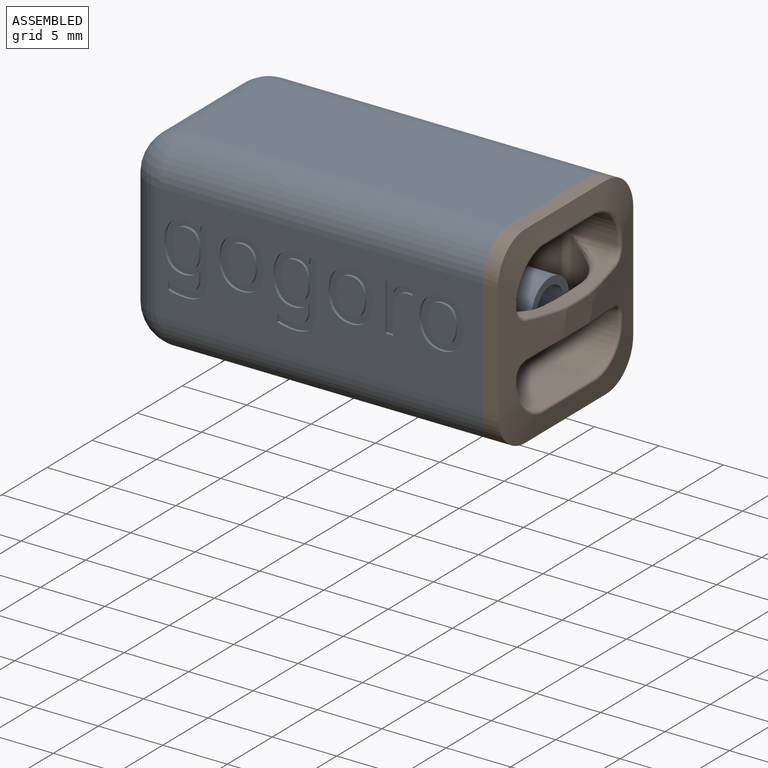
[diagram: assembled view]
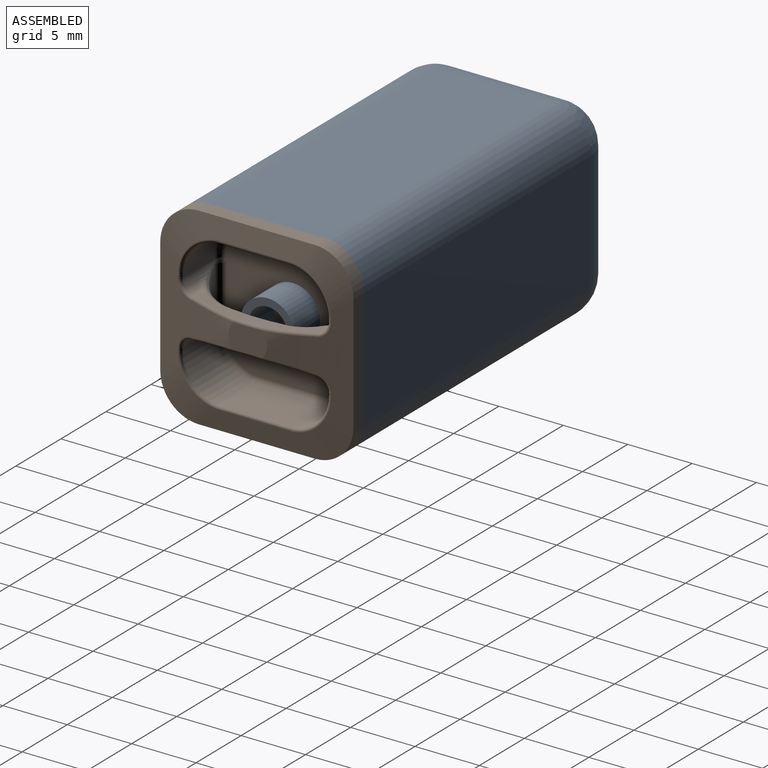
[diagram: assembled view, second angle]
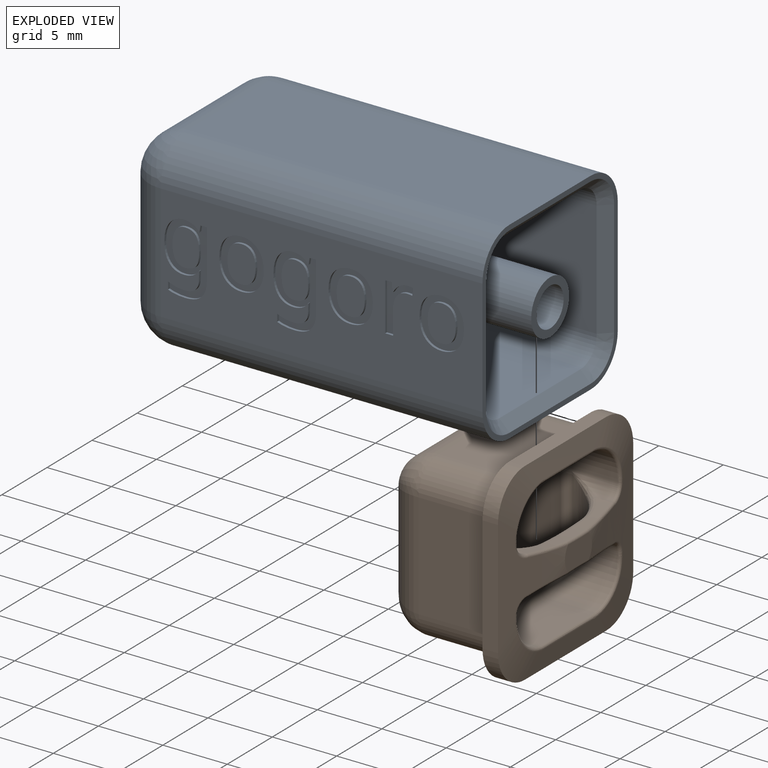
[diagram: exploded view]
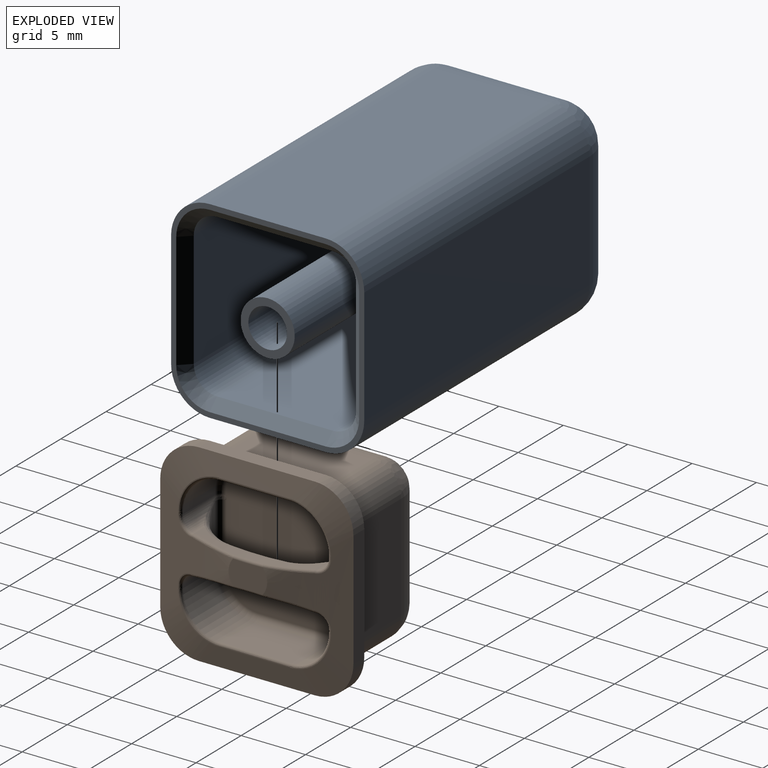
[diagram: exploded view, second angle]
ASSEMBLY  parts=2 mates=3
PART A: 170 faces, bbox 28x15x15 mm
  f0: plane 25x9mm, normal (0,-1,0), area 163.1mm2, adj f1,f11,f15,f17,f35,f36,f37,f38
  f1: plane 15x15mm, normal (1,0,0), area 21.4mm2, adj f0,f2,f3,f4,f6,f8,f11,f17
  f2: plane 25x9mm, normal (0,0,-1), area 225mm2, adj f1,f8,f14,f17
  f3: plane 25x9mm, normal (0,1,0), area 225mm2, adj f1,f6,f8,f9
  f4: plane 25x9mm, normal (0,0,1), area 225mm2, adj f1,f6,f10,f11
  f5: plane 9x9mm, normal (-1,0,0), area 81mm2, adj f9,f10,f14,f15
  f6: cylinder r=3mm len=25mm, axis (1,0,0), area 117.8mm2, adj f1,f3,f4,f7
  f7: sphere r=3mm, area 14.1mm2, adj f6,f9,f10
  f8: cylinder r=3mm len=25mm, axis (-1,0,0), area 117.8mm2, adj f1,f2,f3,f12
  f9: cylinder r=3mm len=9mm, axis (0,0,1), area 42.4mm2, adj f3,f5,f7,f12
  f10: cylinder r=3mm len=9mm, axis (0,-1,0), area 42.4mm2, adj f4,f5,f7,f13
  f11: cylinder r=3mm len=25mm, axis (-1,0,0), area 117.8mm2, adj f0,f1,f4,f13
  f12: sphere r=3mm, area 14.1mm2, adj f8,f9,f14
  f13: sphere r=3mm, area 14.1mm2, adj f10,f11,f15
  f14: cylinder r=3mm len=9mm, axis (0,1,0), area 42.4mm2, adj f2,f5,f12,f16
  f15: cylinder r=3mm len=9mm, axis (0,0,-1), area 42.4mm2, adj f0,f5,f13,f16
  f16: sphere r=3mm, area 14.1mm2, adj f14,f15,f17
  f17: cylinder r=3mm len=25mm, axis (1,0,0), area 117.8mm2, adj f0,f1,f2,f16
  f18: plane 24.2x9mm, normal (0,0,-1), area 217.8mm2, adj f19,f25,f26,f31
  f19: cylinder r=1.8mm len=24.2mm, axis (1,0,0), area 68.4mm2, adj f18,f20,f26,f29
  f20: plane 24.2x9mm, normal (0,1,0), area 217.8mm2, adj f19,f21,f26,f27
  f21: cylinder r=1.8mm len=24.2mm, axis (1,0,0), area 68.4mm2, adj f20,f22,f26,f28
  f22: plane 24.2x9mm, normal (0,0,1), area 217.8mm2, adj f21,f23,f26,f30
  f23: cylinder r=1.8mm len=24.2mm, axis (1,0,0), area 68.4mm2, adj f22,f24,f26,f32
  f24: plane 24.2x9mm, normal (0,-1,0), area 217.8mm2, adj f23,f25,f26,f34
  f25: cylinder r=1.8mm len=24.2mm, axis (1,0,0), area 68.4mm2, adj f18,f24,f26,f33
  f26: plane 12.6x12.6mm, normal (1,0,0), area 142.1mm2, adj f18,f19,f20,f21,f22,f23,f24,f25
  f27: plane 9x0.8mm, normal (0.71,0.71,0), area 10.2mm2, adj f1,f20,f28,f29
  f28: cone r=1.8mm half-angle=45deg, axis (1,0,0), area 3.9mm2, adj f1,f21,f27,f30
  f29: cone r=1.8mm half-angle=45deg, axis (1,0,0), area 3.9mm2, adj f1,f19,f27,f31
  f30: plane 9x0.8mm, normal (0.71,0,0.71), area 10.2mm2, adj f1,f22,f28,f32
  f31: plane 9x0.8mm, normal (0.71,0,-0.71), area 10.2mm2, adj f1,f18,f29,f33
  f32: cone r=1.8mm half-angle=45deg, axis (1,0,0), area 3.9mm2, adj f1,f23,f30,f34
  f33: cone r=1.8mm half-angle=45deg, axis (1,0,0), area 3.9mm2, adj f1,f25,f31,f34
  f34: plane 9x0.8mm, normal (0.71,-0.71,0), area 10.2mm2, adj f1,f24,f32,f33
  f35: extruded ~0.44x0.2mm, area 0.1mm2, adj f0,f36,f48,f49
  f36: extruded ~0.63x0.2mm, area 0.1mm2, adj f0,f35,f37,f49
  f37: extruded ~0.56x0.51mm, area 0.2mm2, adj f0,f36,f38,f49
  f38: plane 0.2x0.03mm, normal (0,0,-1), area 0mm2, adj f0,f37,f39,f49
  f39: plane 0.68x0.2mm, normal (-1,0,-0.1), area 0.1mm2, adj f0,f38,f40,f49
  f40: plane 0.5x0.2mm, normal (0,0,-1), area 0.1mm2, adj f0,f39,f41,f49
  f41: plane 3.72x0.2mm, normal (1,0,0), area 0.7mm2, adj f0,f40,f42,f49
  f42: plane 0.61x0.2mm, normal (0,0,1), area 0.1mm2, adj f0,f41,f43,f49
  f43: plane 1.99x0.2mm, normal (-1,0,0), area 0.4mm2, adj f0,f42,f44,f49
  f44: extruded ~0.64x0.2mm, area 0.1mm2, adj f0,f43,f45,f49
  f45: extruded ~0.45x0.4mm, area 0.1mm2, adj f0,f44,f46,f49
  f46: extruded ~0.55x0.2mm, area 0.1mm2, adj f0,f45,f47,f49
  f47: extruded ~0.4x0.2mm, area 0.1mm2, adj f0,f46,f48,f49
  f48: plane 0.56x0.2mm, normal (-0.99,0,0.13), area 0.1mm2, adj f0,f35,f47,f49
  f49: plane 3.79x2.17mm, normal (0,-1,0), area 3.1mm2, adj f35,f36,f37,f38,f39,f40,f41,f42
  f50: plane 0.46x0.2mm, normal (1,0,-0.04), area 0.1mm2, adj f0,f51,f78,f79
  f51: plane 0.2x0.15mm, normal (1,0,0), area 0mm2, adj f0,f50,f52,f79
  f52: extruded ~0.77x0.28mm, area 0.2mm2, adj f0,f51,f53,f79
  f53: extruded ~0.75x0.28mm, area 0.2mm2, adj f0,f52,f54,f79
  f54: extruded ~1.37x0.29mm, area 0.3mm2, adj f0,f53,f55,f79
  f55: plane 0.56x0.2mm, normal (1,0,0), area 0.1mm2, adj f0,f54,f56,f79
  f56: extruded ~1.34x0.24mm, area 0.3mm2, adj f0,f55,f57,f79
  f57: extruded ~1.26x0.4mm, area 0.3mm2, adj f0,f56,f58,f79
  f58: extruded ~1.2x0.41mm, area 0.3mm2, adj f0,f57,f59,f79
  f59: plane 3.78x0.2mm, normal (-1,0,0), area 0.8mm2, adj f0,f58,f60,f79
  f60: plane 0.49x0.2mm, normal (0,0,-1), area 0.1mm2, adj f0,f59,f61,f79
  f61: plane 0.49x0.2mm, normal (0.99,0,-0.16), area 0.1mm2, adj f0,f60,f62,f79
  f62: plane 0.2x0.04mm, normal (0,0,-1), area 0mm2, adj f0,f61,f63,f79
  f63: extruded ~1.17x0.56mm, area 0.3mm2, adj f0,f62,f64,f79
  f64: extruded ~1.12x0.52mm, area 0.3mm2, adj f0,f63,f65,f79
  f65: extruded ~1.42x0.41mm, area 0.3mm2, adj f0,f64,f66,f79
  f66: extruded ~1.42x0.41mm, area 0.3mm2, adj f0,f65,f67,f79
  f67: extruded ~1.13x0.5mm, area 0.3mm2, adj f0,f66,f68,f79
  f68: extruded ~1.15x0.56mm, area 0.3mm2, adj f0,f67,f78,f79
  f69: extruded ~0.82x0.3mm, area 0.2mm2, adj f70,f77,f79,f80
  f70: extruded ~0.74x0.36mm, area 0.2mm2, adj f69,f71,f79,f80
  f71: extruded ~1.05x0.25mm, area 0.2mm2, adj f70,f72,f79,f80
  f72: extruded ~1.06x0.26mm, area 0.2mm2, adj f71,f73,f79,f80
  f73: extruded ~0.73x0.37mm, area 0.2mm2, adj f72,f74,f79,f80
  f74: extruded ~0.83x0.34mm, area 0.2mm2, adj f73,f75,f79,f80
  f75: extruded ~1.09x0.26mm, area 0.2mm2, adj f74,f76,f79,f80
  f76: plane 0.2x0.15mm, normal (1,0,0), area 0mm2, adj f75,f77,f79,f80
  f77: extruded ~0.98x0.26mm, area 0.2mm2, adj f69,f76,f79,f80
  f78: plane 0.2x0.03mm, normal (0,0,1), area 0mm2, adj f0,f50,f68,f79
  f79: plane 5.46x3.3mm, normal (0,-1,0), area 8.2mm2, adj f50,f51,f52,f53,f54,f55,f56,f57
  f80: plane 2.85x2.07mm, normal (0,-1,0), area 5mm2, adj f69,f70,f71,f72,f73,f74,f75,f76
  f81: extruded ~1.07x0.28mm, area 0.2mm2, adj f82,f96,f97,f163
  f82: extruded ~1.41x1.08mm, area 0.4mm2, adj f81,f83,f97,f163
  f83: extruded ~0.82x0.35mm, area 0.2mm2, adj f82,f84,f97,f163
  f84: extruded ~1.06x0.28mm, area 0.2mm2, adj f83,f85,f97,f163
  f85: extruded ~1.07x0.28mm, area 0.2mm2, adj f84,f86,f97,f163
  f86: extruded ~0.81x0.36mm, area 0.2mm2, adj f85,f96,f97,f163
  f87: extruded ~1.42x0.46mm, area 0.3mm2, adj f0,f88,f95,f97
  f88: extruded ~1.41x0.46mm, area 0.3mm2, adj f0,f87,f89,f97
  f89: extruded ~1.25x0.52mm, area 0.3mm2, adj f0,f88,f90,f97
  f90: extruded ~1.28x0.51mm, area 0.3mm2, adj f0,f89,f91,f97
  f91: extruded ~1.42x0.45mm, area 0.3mm2, adj f0,f90,f92,f97
  f92: extruded ~1.02x0.21mm, area 0.2mm2, adj f0,f91,f93,f97
  f93: extruded ~0.68x0.6mm, area 0.2mm2, adj f0,f92,f94,f97
  f94: extruded ~0.9x0.24mm, area 0.2mm2, adj f0,f93,f95,f97
  f95: extruded ~1.28x0.51mm, area 0.3mm2, adj f0,f87,f94,f97
  f96: extruded ~0.82x0.36mm, area 0.2mm2, adj f81,f86,f97,f163
  f97: plane 3.86x3.44mm, normal (0,-1,0), area 5.7mm2, adj f81,f82,f83,f84,f85,f86,f87,f88
  f98: plane 0.46x0.2mm, normal (1,0,-0.04), area 0.1mm2, adj f0,f99,f126,f127
  f99: plane 0.2x0.15mm, normal (1,0,0), area 0mm2, adj f0,f98,f100,f127
  f100: extruded ~0.77x0.28mm, area 0.2mm2, adj f0,f99,f101,f127
  f101: extruded ~0.75x0.28mm, area 0.2mm2, adj f0,f100,f102,f127
  f102: extruded ~1.37x0.29mm, area 0.3mm2, adj f0,f101,f103,f127
  f103: plane 0.56x0.2mm, normal (1,0,0), area 0.1mm2, adj f0,f102,f104,f127
  f104: extruded ~1.34x0.24mm, area 0.3mm2, adj f0,f103,f105,f127
  f105: extruded ~1.26x0.4mm, area 0.3mm2, adj f0,f104,f106,f127
  f106: extruded ~1.2x0.41mm, area 0.3mm2, adj f0,f105,f107,f127
  f107: plane 3.78x0.2mm, normal (-1,0,0), area 0.8mm2, adj f0,f106,f108,f127
  f108: plane 0.49x0.2mm, normal (0,0,-1), area 0.1mm2, adj f0,f107,f109,f127
  f109: plane 0.49x0.2mm, normal (0.99,0,-0.16), area 0.1mm2, adj f0,f108,f110,f127
  f110: plane 0.2x0.04mm, normal (0,0,-1), area 0mm2, adj f0,f109,f111,f127
  f111: extruded ~1.17x0.56mm, area 0.3mm2, adj f0,f110,f112,f127
  f112: extruded ~1.12x0.52mm, area 0.3mm2, adj f0,f111,f113,f127
  f113: extruded ~1.42x0.41mm, area 0.3mm2, adj f0,f112,f114,f127
  f114: extruded ~1.42x0.41mm, area 0.3mm2, adj f0,f113,f115,f127
  f115: extruded ~1.13x0.5mm, area 0.3mm2, adj f0,f114,f116,f127
  f116: extruded ~1.15x0.56mm, area 0.3mm2, adj f0,f115,f126,f127
  f117: extruded ~0.82x0.3mm, area 0.2mm2, adj f118,f125,f127,f128
  f118: extruded ~0.74x0.36mm, area 0.2mm2, adj f117,f119,f127,f128
  f119: extruded ~1.05x0.25mm, area 0.2mm2, adj f118,f120,f127,f128
  f120: extruded ~1.06x0.26mm, area 0.2mm2, adj f119,f121,f127,f128
  f121: extruded ~0.73x0.37mm, area 0.2mm2, adj f120,f122,f127,f128
  f122: extruded ~0.83x0.34mm, area 0.2mm2, adj f121,f123,f127,f128
  f123: extruded ~1.09x0.26mm, area 0.2mm2, adj f122,f124,f127,f128
  f124: plane 0.2x0.15mm, normal (1,0,0), area 0mm2, adj f123,f125,f127,f128
  f125: extruded ~0.98x0.26mm, area 0.2mm2, adj f117,f124,f127,f128
  f126: plane 0.2x0.03mm, normal (0,0,1), area 0mm2, adj f0,f98,f116,f127
  f127: plane 5.46x3.3mm, normal (0,-1,0), area 8.2mm2, adj f98,f99,f100,f101,f102,f103,f104,f105
  f128: plane 2.85x2.07mm, normal (0,-1,0), area 5mm2, adj f117,f118,f119,f120,f121,f122,f123,f124
  f129: extruded ~1.07x0.28mm, area 0.2mm2, adj f130,f144,f145,f164
  f130: extruded ~1.41x1.08mm, area 0.4mm2, adj f129,f131,f145,f164
  f131: extruded ~0.82x0.35mm, area 0.2mm2, adj f130,f132,f145,f164
  f132: extruded ~1.06x0.28mm, area 0.2mm2, adj f131,f133,f145,f164
  f133: extruded ~1.07x0.28mm, area 0.2mm2, adj f132,f134,f145,f164
  f134: extruded ~0.81x0.36mm, area 0.2mm2, adj f133,f144,f145,f164
  f135: extruded ~1.42x0.46mm, area 0.3mm2, adj f0,f136,f143,f145
  f136: extruded ~1.41x0.46mm, area 0.3mm2, adj f0,f135,f137,f145
  f137: extruded ~1.25x0.52mm, area 0.3mm2, adj f0,f136,f138,f145
  f138: extruded ~1.28x0.51mm, area 0.3mm2, adj f0,f137,f139,f145
  f139: extruded ~1.42x0.45mm, area 0.3mm2, adj f0,f138,f140,f145
  f140: extruded ~1.02x0.21mm, area 0.2mm2, adj f0,f139,f141,f145
  f141: extruded ~0.68x0.6mm, area 0.2mm2, adj f0,f140,f142,f145
  f142: extruded ~0.9x0.24mm, area 0.2mm2, adj f0,f141,f143,f145
  f143: extruded ~1.28x0.51mm, area 0.3mm2, adj f0,f135,f142,f145
  f144: extruded ~0.82x0.36mm, area 0.2mm2, adj f129,f134,f145,f164
  f145: plane 3.86x3.44mm, normal (0,-1,0), area 5.7mm2, adj f129,f130,f131,f132,f133,f134,f135,f136
  f146: extruded ~1.07x0.28mm, area 0.2mm2, adj f147,f161,f162,f165
  f147: extruded ~1.41x1.08mm, area 0.4mm2, adj f146,f148,f162,f165
  f148: extruded ~0.82x0.35mm, area 0.2mm2, adj f147,f149,f162,f165
  f149: extruded ~1.06x0.28mm, area 0.2mm2, adj f148,f150,f162,f165
  f150: extruded ~1.07x0.28mm, area 0.2mm2, adj f149,f151,f162,f165
  f151: extruded ~0.81x0.36mm, area 0.2mm2, adj f150,f161,f162,f165
  f152: extruded ~1.42x0.46mm, area 0.3mm2, adj f0,f153,f160,f162
  f153: extruded ~1.41x0.46mm, area 0.3mm2, adj f0,f152,f154,f162
  f154: extruded ~1.25x0.52mm, area 0.3mm2, adj f0,f153,f155,f162
  f155: extruded ~1.28x0.51mm, area 0.3mm2, adj f0,f154,f156,f162
  f156: extruded ~1.42x0.45mm, area 0.3mm2, adj f0,f155,f157,f162
  f157: extruded ~1.02x0.21mm, area 0.2mm2, adj f0,f156,f158,f162
  f158: extruded ~0.68x0.6mm, area 0.2mm2, adj f0,f157,f159,f162
  f159: extruded ~0.9x0.24mm, area 0.2mm2, adj f0,f158,f160,f162
  f160: extruded ~1.28x0.51mm, area 0.3mm2, adj f0,f152,f159,f162
  f161: extruded ~0.82x0.36mm, area 0.2mm2, adj f146,f151,f162,f165
  f162: plane 3.86x3.44mm, normal (0,-1,0), area 5.7mm2, adj f146,f147,f148,f149,f150,f151,f152,f153
  f163: plane 2.84x2.18mm, normal (0,-1,0), area 5.1mm2, adj f81,f82,f83,f84,f85,f86,f96
  f164: plane 2.84x2.18mm, normal (0,-1,0), area 5.1mm2, adj f129,f130,f131,f132,f133,f134,f144
  f165: plane 2.84x2.18mm, normal (0,-1,0), area 5.1mm2, adj f146,f147,f148,f149,f150,f151,f161
  f166: cylinder r=1.5mm len=25mm, axis (-1,0,0), area 235.6mm2, adj f168,f169
  f167: cylinder r=2.1mm len=25mm, axis (-1,0,0), area 329.9mm2, adj f26,f168
  f168: plane 4.2x4.2mm, normal (1,0,0), area 6.8mm2, adj f166,f167
  f169: plane 3x3mm, normal (1,0,0), area 7.1mm2, adj f166
PART B: 113 faces, bbox 15x15x11 mm
  f0: plane 2.97x1.9mm, normal (0,0,1), area 5.2mm2, adj f1,f109,f111,f112
  f1: torus R=30.2mm, axis (0,0,1), area 0.7mm2, adj f0,f2,f107,f108
  f2: sphere r=0.2mm, area 0mm2, adj f1,f3,f112
  f3: bspline ~4.45x0.85mm, area 1.1mm2, adj f2,f4,f71,f106,f107
  f4: cylinder r=1mm len=3.76mm, axis (0,0,1), area 3.7mm2, adj f3,f5,f69,f70,f106,f107
  f5: bspline ~3.22x1.5mm, area 1.3mm2, adj f4,f6,f67,f68,f107
  f6: bspline ~3.96x1.82mm, area 1.9mm2, adj f5,f7,f68,f107
  f7: torus R=30.5mm, axis (0,0,-1), area 3.4mm2, adj f6,f8,f66,f107
  f8: plane 4.4x1.42mm, normal (0,0,-1), area 5.8mm2, adj f7,f9,f65,f68
  f9: torus R=30.5mm, axis (0,0,-1), area 3.4mm2, adj f8,f10,f63,f64
  f10: bspline ~3.96x1.82mm, area 1.9mm2, adj f9,f11,f63,f68
  f11: bspline ~3.22x1.5mm, area 1.3mm2, adj f10,f12,f62,f63,f68
  f12: bspline ~0.61x0.61mm, area 0.2mm2, adj f11,f13,f60,f61
  f13: torus R=0.5mm, axis (0,0,1), area 0.1mm2, adj f12,f14,f60,f62
  f14: cylinder r=0.5mm len=0.5mm, axis (0,-1,0), area 0.2mm2, adj f13,f15,f59,f60
  f15: torus R=2.5mm, axis (0,0,1), area 3.5mm2, adj f14,f16,f58,f60
  f16: cylinder r=0.5mm len=5.4mm, axis (1,0,0), area 4.2mm2, adj f15,f17,f57,f60
  f17: torus R=2.5mm, axis (0,0,1), area 3.5mm2, adj f16,f18,f56,f60
  f18: cylinder r=0.5mm len=0.5mm, axis (0,1,0), area 0.2mm2, adj f17,f19,f55,f60
  f19: torus R=0.5mm, axis (0,0,1), area 0.1mm2, adj f18,f20,f43,f60
  f20: bspline ~0.78x0.7mm, area 0.2mm2, adj f19,f21,f22,f60
  f21: bspline ~3.22x1.5mm, area 1.3mm2, adj f20,f43,f63,f64,f65
  f22: cylinder r=0.5mm len=4.19mm, axis (0,-1,0), area 3.6mm2, adj f20,f23,f60,f65
  f23: bspline ~0.67x0.66mm, area 0.2mm2, adj f22,f24,f42,f60
  f24: bspline ~3.19x1.5mm, area 1.3mm2, adj f23,f25,f65,f66,f107
  f25: cylinder r=1mm len=3.76mm, axis (0,0,1), area 3.7mm2, adj f24,f26,f40,f41,f42,f107
  f26: plane 3.56x0.2mm, normal (-1,0,0), area 0.7mm2, adj f25,f27,f38,f39
  f27: bspline ~0.7x0.24mm, area 0.1mm2, adj f26,f28,f41,f71
  f28: bspline ~3.53x3.41mm, area 1.7mm2, adj f27,f29,f39,f71
  f29: bspline ~6.76x0.24mm, area 1.9mm2, adj f28,f30,f36,f71
  f30: plane 5.4x3.56mm, normal (0,-1,0), area 19.2mm2, adj f29,f31,f35,f39
  f31: cylinder r=0.5mm len=5.4mm, axis (-1,0,0), area 4.2mm2, adj f30,f32,f33,f60
  f32: torus R=2.5mm, axis (0,0,1), area 3.5mm2, adj f31,f38,f39,f60
  f33: torus R=2.5mm, axis (0,0,1), area 3.5mm2, adj f31,f34,f35,f60
  f34: cylinder r=0.5mm len=0.5mm, axis (0,-1,0), area 0.2mm2, adj f33,f60,f69,f70
  f35: cylinder r=3mm len=3.56mm, axis (0,0,1), area 16.8mm2, adj f30,f33,f36,f70
  f36: bspline ~3.94x3.77mm, area 1.7mm2, adj f29,f35,f37,f71
  f37: bspline ~0.7x0.24mm, area 0.1mm2, adj f36,f70,f71,f106
  f38: cylinder r=0.5mm len=0.5mm, axis (0,1,0), area 0.2mm2, adj f26,f32,f42,f60
  f39: cylinder r=3mm len=3.56mm, axis (0,0,1), area 16.8mm2, adj f26,f28,f30,f32
  f40: bspline ~4.72x0.88mm, area 1.1mm2, adj f25,f41,f71,f107,f108
  f41: bspline ~1.42x1.31mm, area 0.6mm2, adj f25,f27,f40,f71
  f42: torus R=0.5mm, axis (0,0,1), area 0.1mm2, adj f23,f25,f38,f60
  f43: cylinder r=1mm len=3.76mm, axis (0,0,1), area 3.7mm2, adj f19,f21,f44,f53,f55,f63
  f44: bspline ~1.38x1.37mm, area 0.6mm2, adj f43,f45,f53,f71
  f45: bspline ~0.7x0.24mm, area 0.1mm2, adj f44,f46,f55,f71
  f46: bspline ~3.94x3.77mm, area 1.7mm2, adj f45,f47,f56,f71
  f47: bspline ~6.76x0.24mm, area 1.9mm2, adj f46,f48,f57,f71
  f48: bspline ~3.53x3.41mm, area 1.7mm2, adj f47,f49,f58,f71
  f49: bspline ~0.7x0.24mm, area 0.1mm2, adj f48,f50,f59,f71
  f50: bspline ~1.43x1.29mm, area 0.6mm2, adj f49,f51,f62,f71
  f51: bspline ~4.46x0.85mm, area 1.1mm2, adj f50,f52,f62,f63,f71
  f52: sphere r=0.2mm, area 0mm2, adj f51,f111,f112
  f53: bspline ~4.45x0.85mm, area 1.1mm2, adj f43,f44,f54,f63,f71
  f54: sphere r=0.2mm, area 0mm2, adj f53,f109,f111
  f55: plane 3.56x0.2mm, normal (-1,0,0), area 0.7mm2, adj f18,f43,f45,f56
  f56: cylinder r=3mm len=3.56mm, axis (0,0,1), area 16.8mm2, adj f17,f46,f55,f57
  f57: plane 5.4x3.56mm, normal (0,1,0), area 19.2mm2, adj f16,f47,f56,f58
  f58: cylinder r=3mm len=3.56mm, axis (0,0,1), area 16.8mm2, adj f15,f48,f57,f59
  f59: plane 3.56x0.2mm, normal (1,0,0), area 0.7mm2, adj f14,f49,f58,f62
  f60: plane 10.4x10.4mm, normal (0,0,1), area 102.4mm2, adj f12,f13,f14,f15,f16,f17,f18,f19
  f61: cylinder r=0.5mm len=4.19mm, axis (0,-1,0), area 3.6mm2, adj f12,f60,f67,f68
  f62: cylinder r=1mm len=3.76mm, axis (0,0,1), area 3.7mm2, adj f11,f13,f50,f51,f59,f63
  f63: cylinder r=30mm len=9.4mm, axis (0,0,1), area 7.2mm2, adj f9,f10,f11,f21,f43,f51,f53,f62
  f64: bspline ~3.96x1.82mm, area 1.9mm2, adj f9,f21,f63,f65
  f65: cylinder r=3.5mm len=4.19mm, axis (0,-1,0), area 11.9mm2, adj f8,f21,f22,f24,f64,f66
  f66: bspline ~3.96x1.82mm, area 1.9mm2, adj f7,f24,f65,f107
  f67: bspline ~0.78x0.7mm, area 0.2mm2, adj f5,f60,f61,f69
  f68: cylinder r=3.5mm len=4.19mm, axis (0,-1,0), area 11.9mm2, adj f5,f6,f8,f10,f11,f61
  f69: torus R=0.5mm, axis (0,0,1), area 0.1mm2, adj f4,f34,f60,f67
  f70: plane 3.56x0.2mm, normal (1,0,0), area 0.7mm2, adj f4,f34,f35,f37
  f71: bspline ~15x15mm, area 108.9mm2, adj f3,f27,f28,f29,f36,f37,f40,f41
  f72: cylinder r=3mm len=3mm, axis (0,0,1), area 5.7mm2, adj f71,f73,f99,f105
  f73: plane 15x15mm, normal (0,0,-1), area 23.4mm2, adj f72,f74,f92,f93,f94,f95,f96,f97
  f74: plane 8.2x0.8mm, normal (0.71,0,-0.71), area 9.3mm2, adj f73,f75,f92,f98
  f75: plane 8.2x5mm, normal (1,0,0), area 41mm2, adj f74,f76,f90,f91
  f76: cylinder r=3mm len=8.2mm, axis (0,1,0), area 34.9mm2, adj f75,f77,f88,f89
  f77: plane 6.6x6.6mm, normal (0,0,-1), area 43.6mm2, adj f76,f78,f86,f87
  f78: cylinder r=3mm len=8.2mm, axis (-1,0,0), area 34.9mm2, adj f77,f79,f85,f89
  f79: plane 8.2x5mm, normal (0,1,0), area 41mm2, adj f78,f80,f91,f97
  f80: cylinder r=2.2mm len=5mm, axis (0,0,-1), area 17.3mm2, adj f79,f81,f85,f96
  f81: plane 8.2x5mm, normal (-1,0,0), area 41mm2, adj f80,f82,f86,f95
  f82: cylinder r=2.2mm len=5mm, axis (0,0,-1), area 17.3mm2, adj f81,f83,f84,f94
  f83: bspline ~3.17x3mm, area 7.2mm2, adj f82,f86,f87
  f84: plane 8.2x5mm, normal (0,-1,0), area 41mm2, adj f82,f87,f90,f93
  f85: bspline ~3.17x3mm, area 7.3mm2, adj f78,f80,f86
  f86: cylinder r=3mm len=8.2mm, axis (0,-1,0), area 34.9mm2, adj f77,f81,f83,f85
  f87: cylinder r=3mm len=8.2mm, axis (1,0,0), area 34.9mm2, adj f77,f83,f84,f88
  f88: bspline ~3.17x3mm, area 7.3mm2, adj f76,f87,f90
  f89: bspline ~3.17x3mm, area 7.2mm2, adj f76,f78,f91
  f90: cylinder r=2.2mm len=5mm, axis (0,0,-1), area 17.3mm2, adj f75,f84,f88,f92
  f91: cylinder r=2.2mm len=5mm, axis (0,0,-1), area 17.3mm2, adj f75,f79,f89,f98
  f92: cone r=2.2mm half-angle=45deg, axis (0,0,1), area 4.6mm2, adj f73,f74,f90,f93
  f93: plane 8.2x0.8mm, normal (0,-0.71,-0.71), area 9.3mm2, adj f73,f84,f92,f94
  f94: cone r=2.2mm half-angle=45deg, axis (0,0,1), area 4.6mm2, adj f73,f82,f93,f95
  f95: plane 8.2x0.8mm, normal (-0.71,0,-0.71), area 9.3mm2, adj f73,f81,f94,f96
  f96: cone r=2.2mm half-angle=45deg, axis (0,0,1), area 4.6mm2, adj f73,f80,f95,f97
  f97: plane 8.2x0.8mm, normal (0,0.71,-0.71), area 9.3mm2, adj f73,f79,f96,f98
  f98: cone r=2.2mm half-angle=45deg, axis (0,0,1), area 4.6mm2, adj f73,f74,f91,f97
  f99: plane 9x1.2mm, normal (-1,0,0), area 10.8mm2, adj f71,f72,f73,f100
  f100: cylinder r=3mm len=3mm, axis (0,0,-1), area 5.7mm2, adj f71,f73,f99,f101
  f101: plane 9x1.2mm, normal (0,1,0), area 10.8mm2, adj f71,f73,f100,f102
  f102: cylinder r=3mm len=3mm, axis (0,0,1), area 5.7mm2, adj f71,f73,f101,f103
  f103: plane 9x1.2mm, normal (1,0,0), area 10.8mm2, adj f71,f73,f102,f104
  f104: cylinder r=3mm len=3mm, axis (0,0,-1), area 5.7mm2, adj f71,f73,f103,f105
  f105: plane 9x1.2mm, normal (0,-1,0), area 10.8mm2, adj f71,f72,f73,f104
  f106: bspline ~1.45x1.31mm, area 0.6mm2, adj f3,f4,f37,f71
  f107: cylinder r=30mm len=9.4mm, axis (0,0,1), area 7.2mm2, adj f1,f3,f4,f5,f6,f7,f24,f25
  f108: sphere r=0.2mm, area 0mm2, adj f1,f40,f109
  f109: bspline ~1.94x0.37mm, area 0.1mm2, adj f0,f54,f71,f108,f110
  f110: sphere r=0.2mm, area 0mm2, adj f109,f111
  f111: torus R=30.2mm, axis (0,0,1), area 0.7mm2, adj f0,f52,f54,f63,f110
  f112: bspline ~2.19x0.55mm, area 0.1mm2, adj f0,f2,f52,f71
PLACE A t=(-13.96,2.89,-3.36)mm
PLACE B rot(axis=(0.58,0.58,0.58),120deg) t=(5.24,2.89,-3.36)mm
MATE planar A.f2 <-> B.f105  axis (0,0,-1) through (1.54,2.89,-10.86)mm
MATE planar B.f103 <-> A.f3  axis (0,1,0) through (14.64,10.39,-3.36)mm
MATE planar A.f1 <-> B.f73  axis (1,0,0) through (14.04,-4.61,-7.86)mm
